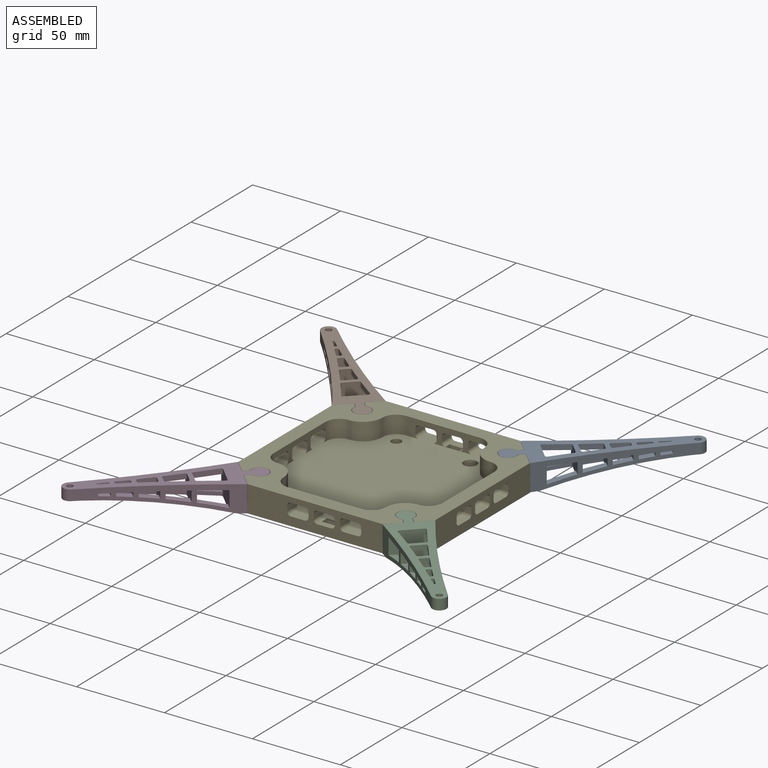
[diagram: assembled view]
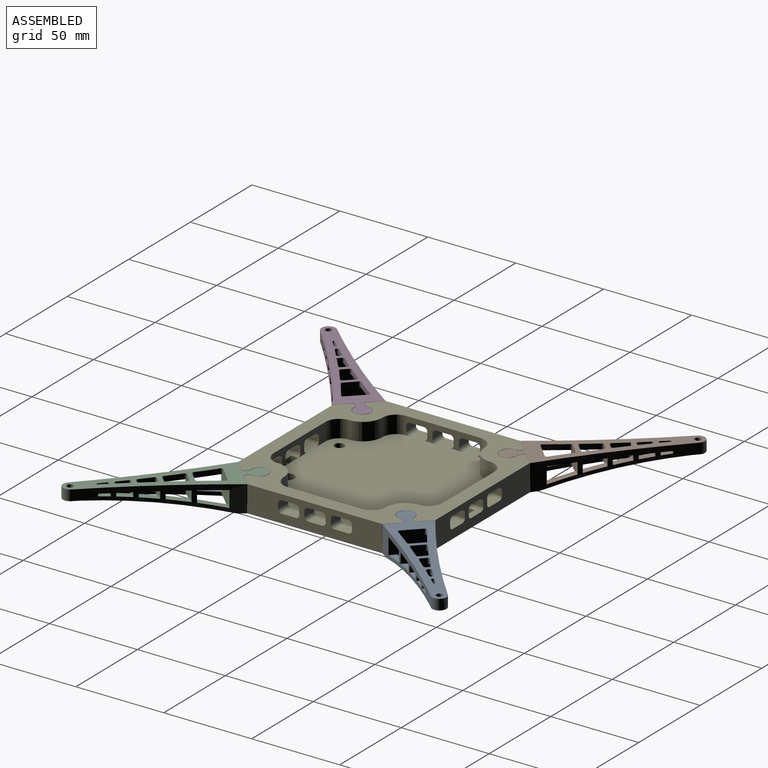
[diagram: assembled view, second angle]
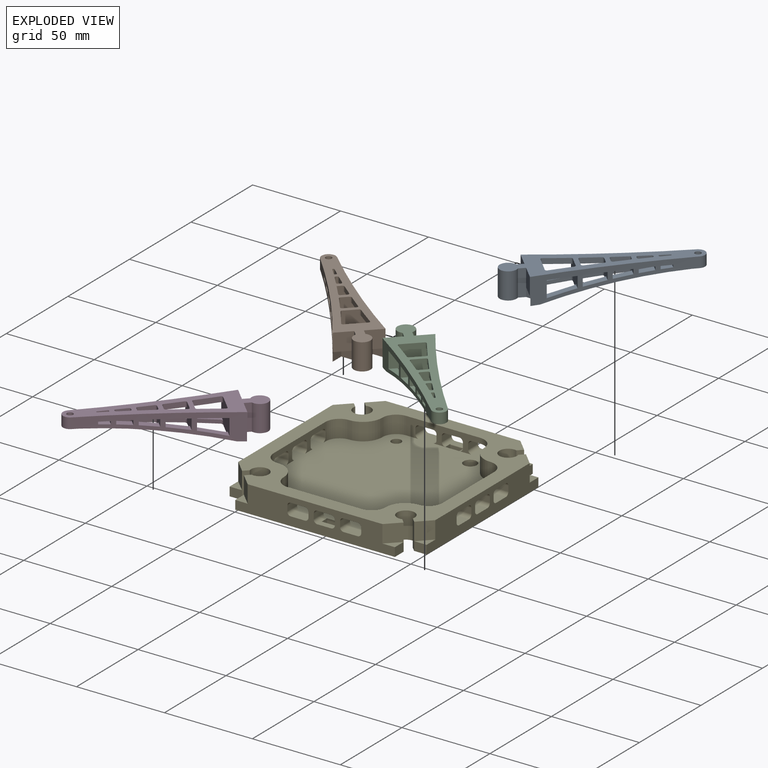
[diagram: exploded view]
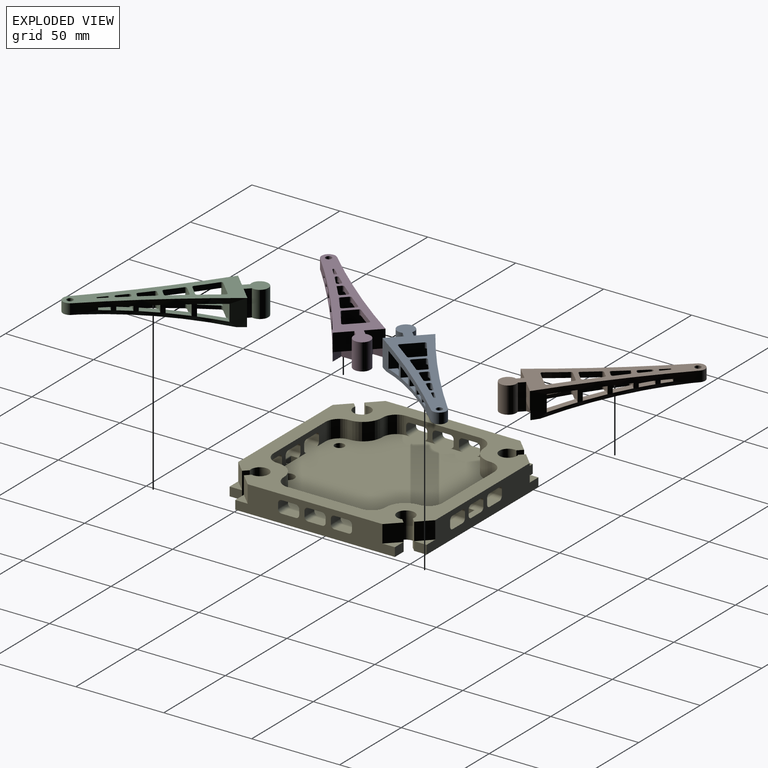
[diagram: exploded view, second angle]
ASSEMBLY  parts=5 mates=4
PART A: 112 faces, bbox 74x74x15 mm
  f0: cylinder r=544mm len=10.55mm, axis (0,0,-1), area 26.7mm2, adj f51,f68,f94,f95
  f1: cylinder r=544mm len=7.9mm, axis (0,0,-1), area 20.3mm2, adj f51,f66,f92,f93
  f2: cylinder r=544mm len=6.18mm, axis (0,0,-1), area 16.1mm2, adj f51,f72,f90,f91
  f3: cylinder r=544mm len=4.55mm, axis (0,0,-1), area 12.1mm2, adj f51,f70,f88,f89
  f4: cylinder r=544mm len=3.73mm, axis (0,0,-1), area 10mm2, adj f51,f64,f108,f109
  f5: cylinder r=540mm len=63.68mm, axis (0,0,-1), area 542.3mm2, adj f6,f16,f18,f19,f21,f22,f24,f25
  f6: cylinder r=4mm len=6.75mm, axis (0,0,-1), area 74.1mm2, adj f5,f7,f46,f52
  f7: cylinder r=540mm len=63.68mm, axis (0,0,-1), area 542.3mm2, adj f6,f14,f16,f18,f19,f21,f22,f24
  f8: cylinder r=544mm len=7.9mm, axis (0,0,-1), area 20.3mm2, adj f51,f62,f98,f99
  f9: cylinder r=544mm len=6.18mm, axis (0,0,-1), area 16.1mm2, adj f51,f60,f100,f101
  f10: cylinder r=544mm len=4.55mm, axis (0,0,-1), area 12.1mm2, adj f51,f58,f102,f103
  f11: cylinder r=544mm len=3.73mm, axis (0,0,-1), area 10mm2, adj f51,f56,f110,f111
  f12: cylinder r=1.75mm len=6mm, axis (0,0,-1), area 66mm2, adj f46,f52
  f13: cylinder r=544mm len=10.55mm, axis (0,0,-1), area 26.7mm2, adj f51,f54,f96,f97
  f14: plane 6.63x2.73mm, normal (0,0,1), area 9mm2, adj f7,f35,f51
  f15: plane 19.1x19.1mm, normal (0,0,1), area 135.2mm2, adj f31,f32,f33,f36,f37,f38,f43,f51
  f16: plane 12.46x12.46mm, normal (0.71,0.71,0), area 151.6mm2, adj f5,f7,f46,f51,f53,f54,f67,f68
  f17: cylinder r=544mm len=10.55mm, axis (0,0,-1), area 39.4mm2, adj f46,f67,f73,f74
  f18: plane 15.67x15.67mm, normal (-0.71,-0.71,0), area 263.8mm2, adj f5,f7,f46,f51,f53,f54,f67,f68
  f19: plane 9.92x9.92mm, normal (0.71,0.71,0), area 79.9mm2, adj f5,f7,f46,f51,f61,f62,f65,f66
  f20: cylinder r=544mm len=7.9mm, axis (0,0,-1), area 30.2mm2, adj f46,f65,f75,f76
  f21: plane 11.98x11.98mm, normal (-0.71,-0.71,0), area 134.2mm2, adj f5,f7,f46,f51,f61,f62,f65,f66
  f22: plane 8.19x8.19mm, normal (0.71,0.71,0), area 43.3mm2, adj f5,f7,f23,f46,f51,f59,f60,f71
  f23: cylinder r=544mm len=6.88mm, axis (0,0,-1), area 26.8mm2, adj f22,f46,f71,f77
  f24: plane 9.54x9.54mm, normal (-0.71,-0.71,0), area 68.5mm2, adj f5,f7,f46,f51,f59,f60,f71,f72
  f25: plane 7.06x7.06mm, normal (0.71,0.71,0), area 19mm2, adj f5,f7,f46,f51,f57,f58,f69,f70
  f26: cylinder r=544mm len=4.55mm, axis (0,0,-1), area 18mm2, adj f46,f69,f78,f79
  f27: plane 7.9x7.9mm, normal (-0.71,-0.71,0), area 32.9mm2, adj f5,f7,f46,f51,f57,f58,f69,f70
  f28: plane 6.35x6.35mm, normal (0.71,0.71,0), area 12.1mm2, adj f5,f7,f46,f51,f55,f56,f63,f64
  f29: cylinder r=544mm len=3.73mm, axis (0,0,-1), area 15mm2, adj f46,f63,f104,f105
  f30: plane 6.83x6.83mm, normal (-0.71,-0.71,0), area 19.2mm2, adj f5,f7,f46,f51,f55,f56,f63,f64
  f31: plane 15x2.75mm, normal (-0.71,0.71,0), area 58.3mm2, adj f15,f32,f43,f46
  f32: plane 15x7.21mm, normal (0.71,0.71,0), area 102mm2, adj f15,f31,f33,f46,f47,f48
  f33: plane 7.33x5mm, normal (0,1,0), area 36.6mm2, adj f15,f32,f34,f48,f51
  f34: plane 7.03x5mm, normal (1,0,0), area 35.1mm2, adj f5,f33,f45,f48,f51
  f35: plane 7.03x5mm, normal (0,1,0), area 35.1mm2, adj f7,f14,f36,f50,f51
  f36: plane 7.33x5mm, normal (1,0,0), area 36.6mm2, adj f15,f35,f37,f50,f51
  f37: plane 15x7.21mm, normal (0.71,0.71,0), area 102mm2, adj f15,f36,f38,f46,f49,f50
  f38: plane 15x2.75mm, normal (0.71,-0.71,0), area 58.3mm2, adj f15,f37,f43,f46
  f39: cylinder r=544mm len=7.9mm, axis (0,0,-1), area 30.2mm2, adj f46,f61,f80,f81
  f40: cylinder r=544mm len=6.18mm, axis (0,0,-1), area 24.1mm2, adj f46,f59,f82,f83
  f41: cylinder r=544mm len=4.55mm, axis (0,0,-1), area 18mm2, adj f46,f57,f84,f85
  f42: cylinder r=544mm len=3.73mm, axis (0,0,-1), area 15mm2, adj f46,f55,f106,f107
  f43: cylinder r=4.8mm len=15mm, axis (0,0,-1), area 380.4mm2, adj f15,f31,f38,f46
  f44: cylinder r=544mm len=10.55mm, axis (0,0,-1), area 39.4mm2, adj f46,f53,f86,f87
  f45: plane 6.63x2.73mm, normal (0,0,1), area 9mm2, adj f5,f34,f51
  f46: plane 72.3x72.3mm, normal (0,0,-1), area 947.7mm2, adj f5,f6,f7,f12,f16,f17,f18,f19
  f47: plane 10x0.17mm, normal (-0.78,0.63,0), area 2.2mm2, adj f5,f32,f46,f48
  f48: plane 7.33x7.19mm, normal (0,0,1), area 26.8mm2, adj f32,f33,f34,f47
  f49: plane 10x0.17mm, normal (0.63,-0.78,0), area 2.2mm2, adj f7,f37,f46,f50
  f50: plane 7.33x7.19mm, normal (0,0,1), area 26.8mm2, adj f35,f36,f37,f49
  f51: cylinder r=387.19mm len=68.23mm, axis (-0.71,0.71,0), area 703.3mm2, adj f0,f1,f2,f3,f4,f5,f7,f8
  f52: plane 9.44x9.44mm, normal (0,0,1), area 44.6mm2, adj f5,f6,f7,f12,f51
  f53: plane 15.69x12.7mm, normal (0,0,1), area 61.1mm2, adj f7,f16,f18,f44,f86,f87
  f54: cylinder r=389.19mm len=15.69mm, axis (-0.71,0.71,0), area 62.3mm2, adj f7,f13,f16,f18,f96,f97
  f55: plane 7.65x7.21mm, normal (0,0,1), area 24.1mm2, adj f7,f28,f30,f42,f106,f107
  f56: cylinder r=389.19mm len=7.65mm, axis (-0.71,0.71,0), area 24.2mm2, adj f7,f11,f28,f30,f110,f111
  f57: plane 9.57x8.84mm, normal (0,0,1), area 32.5mm2, adj f7,f25,f27,f41,f84,f85
  f58: cylinder r=389.19mm len=9.57mm, axis (-0.71,0.71,0), area 32.7mm2, adj f7,f10,f25,f27,f102,f103
  f59: plane 11.23x10.02mm, normal (0,0,1), area 40.6mm2, adj f7,f22,f24,f40,f82,f83
  f60: cylinder r=389.19mm len=11.23mm, axis (-0.71,0.71,0), area 40.8mm2, adj f7,f9,f22,f24,f100,f101
  f61: plane 12.99x11.12mm, normal (0,0,1), area 48.8mm2, adj f7,f19,f21,f39,f80,f81
  f62: cylinder r=389.19mm len=12.99mm, axis (-0.71,0.71,0), area 49.3mm2, adj f7,f8,f19,f21,f98,f99
  f63: plane 7.65x7.21mm, normal (0,0,1), area 24.1mm2, adj f5,f28,f29,f30,f104,f105
  f64: cylinder r=389.19mm len=7.65mm, axis (-0.71,0.71,0), area 24.2mm2, adj f4,f5,f28,f30,f108,f109
  f65: plane 12.99x11.12mm, normal (0,0,1), area 48.8mm2, adj f5,f19,f20,f21,f75,f76
  f66: cylinder r=389.19mm len=12.99mm, axis (-0.71,0.71,0), area 49.3mm2, adj f1,f5,f19,f21,f92,f93
  f67: plane 15.69x12.7mm, normal (0,0,1), area 61.1mm2, adj f5,f16,f17,f18,f73,f74
  f68: cylinder r=389.19mm len=15.69mm, axis (-0.71,0.71,0), area 62.3mm2, adj f0,f5,f16,f18,f94,f95
  f69: plane 9.57x8.84mm, normal (0,0,1), area 32.5mm2, adj f5,f25,f26,f27,f78,f79
  f70: cylinder r=389.19mm len=9.57mm, axis (-0.71,0.71,0), area 32.7mm2, adj f3,f5,f25,f27,f88,f89
  f71: plane 10.59x10.02mm, normal (0,0,1), area 40.5mm2, adj f5,f22,f23,f24,f77
  f72: cylinder r=389.19mm len=11.23mm, axis (-0.71,0.71,0), area 40.8mm2, adj f2,f5,f22,f24,f90,f91
  f73: cylinder r=1mm len=3mm, axis (0,0,-1), area 4.3mm2, adj f16,f17,f46,f67
  f74: cylinder r=1mm len=3mm, axis (0,0,-1), area 5.2mm2, adj f17,f18,f46,f67
  f75: cylinder r=1mm len=3mm, axis (0,0,-1), area 4.4mm2, adj f19,f20,f46,f65
  f76: cylinder r=1mm len=3mm, axis (0,0,-1), area 5.1mm2, adj f20,f21,f46,f65
  f77: cylinder r=1mm len=3mm, axis (0,0,-1), area 5mm2, adj f23,f24,f46,f71
  f78: cylinder r=1mm len=3mm, axis (0,0,-1), area 4.5mm2, adj f25,f26,f46,f69
  f79: cylinder r=1mm len=3mm, axis (0,0,-1), area 4.9mm2, adj f26,f27,f46,f69
  f80: cylinder r=1mm len=3mm, axis (0,0,-1), area 5.1mm2, adj f21,f39,f46,f61
  f81: cylinder r=1mm len=3mm, axis (0,0,-1), area 4.4mm2, adj f19,f39,f46,f61
  f82: cylinder r=1mm len=3mm, axis (0,0,-1), area 5mm2, adj f24,f40,f46,f59
  f83: cylinder r=1mm len=3mm, axis (0,0,-1), area 4.5mm2, adj f22,f40,f46,f59
  f84: cylinder r=1mm len=3mm, axis (0,0,-1), area 4.9mm2, adj f27,f41,f46,f57
  f85: cylinder r=1mm len=3mm, axis (0,0,-1), area 4.5mm2, adj f25,f41,f46,f57
  f86: cylinder r=1mm len=3mm, axis (0,0,-1), area 5.2mm2, adj f18,f44,f46,f53
  f87: cylinder r=1mm len=3mm, axis (0,0,-1), area 4.3mm2, adj f16,f44,f46,f53
  f88: cylinder r=1mm len=2.07mm, axis (0,0,-1), area 3mm2, adj f3,f25,f51,f70
  f89: cylinder r=1mm len=2.11mm, axis (0,0,-1), area 3.3mm2, adj f3,f27,f51,f70
  f90: cylinder r=1mm len=2.1mm, axis (0,0,-1), area 3mm2, adj f2,f22,f51,f72
  f91: cylinder r=1mm len=2.15mm, axis (0,0,-1), area 3.4mm2, adj f2,f24,f51,f72
  f92: cylinder r=1mm len=2.14mm, axis (0,0,-1), area 2.9mm2, adj f1,f19,f51,f66
  f93: cylinder r=1mm len=2.21mm, axis (0,0,-1), area 3.4mm2, adj f1,f21,f51,f66
  f94: cylinder r=1mm len=2.18mm, axis (0,0,-1), area 2.9mm2, adj f0,f16,f51,f68
  f95: cylinder r=1mm len=2.29mm, axis (0,0,-1), area 3.5mm2, adj f0,f18,f51,f68
  f96: cylinder r=1mm len=2.29mm, axis (0,0,-1), area 3.5mm2, adj f13,f18,f51,f54
  f97: cylinder r=1mm len=2.18mm, axis (0,0,-1), area 2.9mm2, adj f13,f16,f51,f54
  f98: cylinder r=1mm len=2.21mm, axis (0,0,-1), area 3.4mm2, adj f8,f21,f51,f62
  f99: cylinder r=1mm len=2.14mm, axis (0,0,-1), area 2.9mm2, adj f8,f19,f51,f62
  f100: cylinder r=1mm len=2.15mm, axis (0,0,-1), area 3.4mm2, adj f9,f24,f51,f60
  f101: cylinder r=1mm len=2.1mm, axis (0,0,-1), area 3mm2, adj f9,f22,f51,f60
  f102: cylinder r=1mm len=2.11mm, axis (0,0,-1), area 3.3mm2, adj f10,f27,f51,f58
  f103: cylinder r=1mm len=2.07mm, axis (0,0,-1), area 3mm2, adj f10,f25,f51,f58
  f104: cylinder r=0.5mm len=3mm, axis (0,0,-1), area 2.3mm2, adj f28,f29,f46,f63
  f105: cylinder r=0.5mm len=3mm, axis (0,0,-1), area 2.4mm2, adj f29,f30,f46,f63
  f106: cylinder r=0.5mm len=3mm, axis (0,0,-1), area 2.4mm2, adj f30,f42,f46,f55
  f107: cylinder r=0.5mm len=3mm, axis (0,0,-1), area 2.3mm2, adj f28,f42,f46,f55
  f108: cylinder r=0.5mm len=2.03mm, axis (0,0,-1), area 1.5mm2, adj f4,f28,f51,f64
  f109: cylinder r=0.5mm len=2.04mm, axis (0,0,-1), area 1.6mm2, adj f4,f30,f51,f64
  f110: cylinder r=0.5mm len=2.04mm, axis (0,0,-1), area 1.6mm2, adj f11,f30,f51,f56
  f111: cylinder r=0.5mm len=2.03mm, axis (0,0,-1), area 1.5mm2, adj f11,f28,f51,f56
PART B: same geometry as A
PART C: same geometry as A
PART D: same geometry as A
PART E: 165 faces, bbox 112x112x15 mm
  f0: plane 112x112mm, normal (0,0,1), area 8271.6mm2, adj f3,f4,f5,f6,f7,f8,f9,f10
  f1: plane 8x3.5mm, normal (0,0,1), area 28mm2, adj f10,f102,f103,f163
  f2: plane 112x112mm, normal (0,0,-1), area 11532.6mm2, adj f3,f4,f9,f10,f15,f16,f17,f18
  f3: plane 90.79x15mm, normal (1,0,0), area 978.7mm2, adj f0,f2,f19,f22,f24,f33,f34,f50
  f4: plane 90.79x15mm, normal (-1,0,0), area 978.7mm2, adj f0,f2,f19,f26,f43,f44,f47,f54
  f5: plane 2x2mm, normal (1,0,0), area 0.9mm2, adj f0,f59,f152
  f6: plane 2x2mm, normal (1,0,0), area 0.9mm2, adj f0,f61,f137
  f7: plane 2x2mm, normal (-1,0,0), area 0.9mm2, adj f0,f67,f116
  f8: plane 2x2mm, normal (-1,0,0), area 0.9mm2, adj f0,f65,f126
  f9: plane 90.79x15mm, normal (0,-1,0), area 979.2mm2, adj f0,f2,f19,f20,f21,f28,f29,f48
  f10: plane 90.79x15mm, normal (0,1,0), area 979.2mm2, adj f0,f1,f2,f19,f23,f25,f38,f39
  f11: cylinder r=8mm len=10mm, axis (0,0,-1), area 87.7mm2, adj f0,f12,f19,f56,f92,f93,f94,f96
  f12: plane 42x10mm, normal (0,-1,0), area 213.9mm2, adj f0,f11,f19,f57,f90,f91,f92,f95
  f13: plane 42x10mm, normal (0,1,0), area 213.9mm2, adj f0,f14,f19,f63,f72,f73,f74,f75
  f14: cylinder r=8mm len=10mm, axis (0,0,-1), area 87.7mm2, adj f0,f13,f19,f64,f69,f70,f71,f72
  f15: cylinder r=2.75mm len=5.5mm, axis (0,0,-1), area 86.4mm2, adj f0,f2
  f16: cylinder r=3.75mm len=7.5mm, axis (0,0,-1), area 117.8mm2, adj f0,f2
  f17: cylinder r=2.75mm len=5.5mm, axis (0,0,-1), area 86.4mm2, adj f0,f2
  f18: cylinder r=3.75mm len=7.5mm, axis (0,0,-1), area 117.8mm2, adj f0,f2
  f19: plane 112x112mm, normal (0,0,1), area 3774.5mm2, adj f3,f4,f9,f10,f11,f12,f13,f14
  f20: plane 7.07x7.07mm, normal (0,0,1), area 25mm2, adj f9,f28,f48
  f21: plane 7.07x7.07mm, normal (0,0,1), area 25mm2, adj f9,f29,f49
  f22: plane 7.07x7.07mm, normal (0,0,1), area 25mm2, adj f3,f34,f51
  f23: plane 7.07x7.07mm, normal (0,0,1), area 25mm2, adj f10,f38,f52
  f24: plane 7.07x7.07mm, normal (0,0,1), area 25mm2, adj f3,f33,f50
  f25: plane 7.07x7.07mm, normal (0,0,1), area 25mm2, adj f10,f39,f53
  f26: plane 7.07x7.07mm, normal (0,0,1), area 25mm2, adj f4,f44,f55
  f27: plane 15x2.6mm, normal (-0.71,0.71,0), area 55mm2, adj f2,f19,f28,f46,f48
  f28: plane 7.07x5mm, normal (-1,0,0), area 35.4mm2, adj f2,f9,f20,f27
  f29: plane 7.07x5mm, normal (1,0,0), area 35.4mm2, adj f2,f9,f21,f30
  f30: plane 15x2.6mm, normal (0.71,0.71,0), area 55mm2, adj f2,f19,f29,f31,f49
  f31: cylinder r=5mm len=15mm, axis (0,0,-1), area 392.7mm2, adj f2,f19,f30,f32
  f32: plane 15x2.6mm, normal (-0.71,-0.71,0), area 55mm2, adj f2,f19,f31,f33,f50
  f33: plane 7.07x5mm, normal (0,-1,0), area 35.4mm2, adj f2,f3,f24,f32
  f34: plane 7.07x5mm, normal (0,1,0), area 35.4mm2, adj f2,f3,f22,f35
  f35: plane 15x2.6mm, normal (-0.71,0.71,0), area 55mm2, adj f2,f19,f34,f36,f51
  f36: cylinder r=5mm len=15mm, axis (0,0,-1), area 392.7mm2, adj f2,f19,f35,f37
  f37: plane 15x2.6mm, normal (0.71,-0.71,0), area 55mm2, adj f2,f19,f36,f38,f52
  f38: plane 7.07x5mm, normal (1,0,0), area 35.4mm2, adj f2,f10,f23,f37
  f39: plane 7.07x5mm, normal (-1,0,0), area 35.4mm2, adj f2,f10,f25,f40
  f40: plane 15x2.6mm, normal (-0.71,-0.71,0), area 55mm2, adj f2,f19,f39,f41,f53
  f41: cylinder r=5mm len=15mm, axis (0,0,-1), area 392.7mm2, adj f2,f19,f40,f42
  f42: plane 15x2.6mm, normal (0.71,0.71,0), area 55mm2, adj f2,f19,f41,f43,f54
  f43: plane 7.07x5mm, normal (0,1,0), area 35.4mm2, adj f2,f4,f42,f47
  f44: plane 7.07x5mm, normal (0,-1,0), area 35.4mm2, adj f2,f4,f26,f45
  f45: plane 15x2.6mm, normal (0.71,-0.71,0), area 55mm2, adj f2,f19,f44,f46,f55
  f46: cylinder r=5mm len=15mm, axis (0,0,-1), area 392.7mm2, adj f2,f19,f27,f45
  f47: plane 7.07x7.07mm, normal (0,0,1), area 25mm2, adj f4,f43,f54
  f48: plane 10x7.07mm, normal (-0.71,-0.71,0), area 100mm2, adj f9,f19,f20,f27
  f49: plane 10x7.07mm, normal (0.71,-0.71,0), area 100mm2, adj f9,f19,f21,f30
  f50: plane 10x7.07mm, normal (0.71,-0.71,0), area 100mm2, adj f3,f19,f24,f32
  f51: plane 10x7.07mm, normal (0.71,0.71,0), area 100mm2, adj f3,f19,f22,f35
  f52: plane 10x7.07mm, normal (0.71,0.71,0), area 100mm2, adj f10,f19,f23,f37
  f53: plane 10x7.07mm, normal (-0.71,0.71,0), area 100mm2, adj f10,f19,f25,f40
  f54: plane 10x7.07mm, normal (-0.71,0.71,0), area 100mm2, adj f4,f19,f42,f47
  f55: plane 10x7.07mm, normal (-0.71,-0.71,0), area 100mm2, adj f4,f19,f26,f45
  f56: cylinder r=11mm len=11mm, axis (0,0,-1), area 172.8mm2, adj f0,f11,f19,f67
  f57: cylinder r=8mm len=10mm, axis (0,0,-1), area 125.7mm2, adj f0,f12,f19,f58
  f58: cylinder r=11mm len=11mm, axis (0,0,-1), area 172.8mm2, adj f0,f19,f57,f59
  f59: cylinder r=8mm len=10mm, axis (0,0,-1), area 125.7mm2, adj f0,f5,f19,f58,f60,f149
  f60: plane 42x10mm, normal (1,0,0), area 176.6mm2, adj f0,f19,f59,f61,f132,f133,f134,f135
  f61: cylinder r=8mm len=10mm, axis (0,0,-1), area 125.7mm2, adj f0,f6,f19,f60,f62,f136
  f62: cylinder r=11mm len=11mm, axis (0,0,-1), area 172.8mm2, adj f0,f19,f61,f63
  f63: cylinder r=8mm len=10mm, axis (0,0,-1), area 125.7mm2, adj f0,f13,f19,f62
  f64: cylinder r=11mm len=11mm, axis (0,0,-1), area 172.8mm2, adj f0,f14,f19,f65
  f65: cylinder r=8mm len=10mm, axis (0,0,-1), area 125.7mm2, adj f0,f8,f19,f64,f66,f127
  f66: plane 42x10mm, normal (-1,0,0), area 176.6mm2, adj f0,f19,f65,f67,f111,f112,f113,f115
  f67: cylinder r=8mm len=10mm, axis (0,0,-1), area 125.7mm2, adj f0,f7,f19,f56,f66,f114
  f68: plane 8x3.5mm, normal (0,0,1), area 28mm2, adj f9,f76,f81,f164
  f69: cylinder r=2mm len=9.97mm, axis (0,-1,0), area 29.7mm2, adj f9,f14,f70,f72
  f70: plane 9.97x3mm, normal (-1,0,0), area 29.9mm2, adj f9,f14,f69,f71
  f71: cylinder r=2mm len=9.97mm, axis (0,-1,0), area 29.7mm2, adj f0,f9,f14,f70
  f72: plane 8.69x8mm, normal (0,0,-1), area 64.7mm2, adj f9,f13,f14,f69,f75
  f73: cylinder r=2mm len=8mm, axis (0,-1,0), area 25.1mm2, adj f0,f9,f13,f74
  f74: plane 8x3mm, normal (1,0,0), area 24mm2, adj f9,f13,f73,f75
  f75: cylinder r=2mm len=8mm, axis (0,-1,0), area 25.1mm2, adj f9,f13,f72,f74
  f76: cylinder r=2mm len=8mm, axis (0,-1,0), area 25.1mm2, adj f9,f13,f68,f77,f158
  f77: plane 8x2.96mm, normal (1,0,0), area 23.7mm2, adj f9,f13,f76,f78
  f78: cylinder r=2mm len=8mm, axis (0,-1,0), area 25.1mm2, adj f9,f13,f77,f82
  f79: cylinder r=2mm len=8mm, axis (0,-1,0), area 25.1mm2, adj f9,f13,f80,f82
  f80: plane 8x2.96mm, normal (-1,0,0), area 23.7mm2, adj f9,f13,f79,f81
  f81: cylinder r=2mm len=8mm, axis (0,-1,0), area 25.1mm2, adj f9,f13,f68,f80,f160
  f82: plane 8x8mm, normal (0,0,-1), area 64mm2, adj f9,f13,f78,f79
  f83: cylinder r=2mm len=8mm, axis (0,-1,0), area 25.1mm2, adj f0,f9,f13,f89
  f84: cylinder r=2mm len=8mm, axis (0,-1,0), area 25.1mm2, adj f0,f9,f13,f85
  f85: plane 8x3mm, normal (1,0,0), area 24mm2, adj f9,f13,f84,f86
  f86: cylinder r=2mm len=8mm, axis (0,-1,0), area 25.1mm2, adj f9,f13,f85,f87
  f87: plane 8x8mm, normal (0,0,-1), area 64mm2, adj f9,f13,f86,f88
  f88: cylinder r=2mm len=8mm, axis (0,-1,0), area 25.1mm2, adj f9,f13,f87,f89
  f89: plane 8x3mm, normal (-1,0,0), area 24mm2, adj f9,f13,f83,f88
  f90: cylinder r=2mm len=8mm, axis (0,-1,0), area 25.1mm2, adj f10,f12,f91,f92
  f91: plane 8x3mm, normal (1,0,0), area 24mm2, adj f10,f12,f90,f95
  f92: plane 8.69x8mm, normal (0,0,-1), area 64.7mm2, adj f10,f11,f12,f90,f94
  f93: plane 9.97x3mm, normal (-1,0,0), area 29.9mm2, adj f10,f11,f94,f96
  f94: cylinder r=2mm len=9.97mm, axis (0,-1,0), area 29.7mm2, adj f10,f11,f92,f93
  f95: cylinder r=2mm len=8mm, axis (0,-1,0), area 25.1mm2, adj f0,f10,f12,f91
  f96: cylinder r=2mm len=9.97mm, axis (0,-1,0), area 29.7mm2, adj f0,f10,f11,f93
  f97: plane 8x8mm, normal (0,0,-1), area 64mm2, adj f10,f12,f98,f101
  f98: cylinder r=2mm len=8mm, axis (0,-1,0), area 25.1mm2, adj f10,f12,f97,f99
  f99: plane 8x2.96mm, normal (1,0,0), area 23.7mm2, adj f10,f12,f98,f102
  f100: plane 8x2.96mm, normal (-1,0,0), area 23.7mm2, adj f10,f12,f101,f103
  f101: cylinder r=2mm len=8mm, axis (0,-1,0), area 25.1mm2, adj f10,f12,f97,f100
  f102: cylinder r=2mm len=8mm, axis (0,-1,0), area 25.1mm2, adj f1,f10,f12,f99,f153
  f103: cylinder r=2mm len=8mm, axis (0,-1,0), area 25.1mm2, adj f1,f10,f12,f100,f155
  f104: plane 8x3mm, normal (-1,0,0), area 24mm2, adj f10,f12,f105,f110
  f105: cylinder r=2mm len=8mm, axis (0,-1,0), area 25.1mm2, adj f10,f12,f104,f106
  f106: plane 8x8mm, normal (0,0,-1), area 64mm2, adj f10,f12,f105,f107
  f107: cylinder r=2mm len=8mm, axis (0,-1,0), area 25.1mm2, adj f10,f12,f106,f108
  f108: plane 8x3mm, normal (1,0,0), area 24mm2, adj f10,f12,f107,f109
  f109: cylinder r=2mm len=8mm, axis (0,-1,0), area 25.1mm2, adj f0,f10,f12,f108
  f110: cylinder r=2mm len=8mm, axis (0,-1,0), area 25.1mm2, adj f0,f10,f12,f104
  f111: cylinder r=2mm len=8mm, axis (1,0,0), area 25.1mm2, adj f0,f3,f66,f112
  f112: plane 8x3mm, normal (0,1,0), area 24mm2, adj f3,f66,f111,f113
  f113: cylinder r=2mm len=8mm, axis (1,0,0), area 25.1mm2, adj f3,f66,f112,f117
  f114: plane 8x3mm, normal (0,-1,0), area 24mm2, adj f3,f67,f115,f116
  f115: cylinder r=2mm len=8mm, axis (1,0,0), area 25.1mm2, adj f3,f66,f114,f117
  f116: cylinder r=2mm len=8mm, axis (1,0,0), area 25.1mm2, adj f0,f3,f7,f114
  f117: plane 8x8mm, normal (0,0,-1), area 64mm2, adj f3,f66,f113,f115
  f118: cylinder r=2mm len=8mm, axis (1,0,0), area 25.1mm2, adj f0,f3,f66,f119
  f119: plane 8x3mm, normal (0,1,0), area 24mm2, adj f3,f66,f118,f120
  f120: cylinder r=2mm len=8mm, axis (1,0,0), area 25.1mm2, adj f3,f66,f119,f124
  f121: cylinder r=2mm len=8mm, axis (1,0,0), area 25.1mm2, adj f3,f66,f122,f124
  f122: plane 8x3mm, normal (0,-1,0), area 24mm2, adj f3,f66,f121,f123
  f123: cylinder r=2mm len=8mm, axis (1,0,0), area 25.1mm2, adj f0,f3,f66,f122
  f124: plane 8x8mm, normal (0,0,-1), area 64mm2, adj f3,f66,f120,f121
  f125: cylinder r=2mm len=8mm, axis (1,0,0), area 25.1mm2, adj f0,f3,f66,f131
  f126: cylinder r=2mm len=8mm, axis (1,0,0), area 25.1mm2, adj f0,f3,f8,f127
  f127: plane 8x3mm, normal (0,1,0), area 24mm2, adj f3,f65,f126,f128
  f128: cylinder r=2mm len=8mm, axis (1,0,0), area 25.1mm2, adj f3,f66,f127,f129
  f129: plane 8x8mm, normal (0,0,-1), area 64mm2, adj f3,f66,f128,f130
  f130: cylinder r=2mm len=8mm, axis (1,0,0), area 25.1mm2, adj f3,f66,f129,f131
  f131: plane 8x3mm, normal (0,-1,0), area 24mm2, adj f3,f66,f125,f130
  f132: plane 8x3mm, normal (0,-1,0), area 24mm2, adj f4,f60,f133,f138
  f133: cylinder r=2mm len=8mm, axis (1,0,0), area 25.1mm2, adj f4,f60,f132,f134
  f134: plane 8x8mm, normal (0,0,-1), area 64mm2, adj f4,f60,f133,f135
  f135: cylinder r=2mm len=8mm, axis (1,0,0), area 25.1mm2, adj f4,f60,f134,f136
  f136: plane 8x3mm, normal (0,1,0), area 24mm2, adj f4,f61,f135,f137
  f137: cylinder r=2mm len=8mm, axis (1,0,0), area 25.1mm2, adj f0,f4,f6,f136
  f138: cylinder r=2mm len=8mm, axis (1,0,0), area 25.1mm2, adj f0,f4,f60,f132
  f139: plane 8x8mm, normal (0,0,-1), area 64mm2, adj f4,f60,f140,f143
  f140: cylinder r=2mm len=8mm, axis (1,0,0), area 25.1mm2, adj f4,f60,f139,f141
  f141: plane 8x3mm, normal (0,1,0), area 24mm2, adj f4,f60,f140,f144
  f142: plane 8x3mm, normal (0,-1,0), area 24mm2, adj f4,f60,f143,f145
  f143: cylinder r=2mm len=8mm, axis (1,0,0), area 25.1mm2, adj f4,f60,f139,f142
  f144: cylinder r=2mm len=8mm, axis (1,0,0), area 25.1mm2, adj f0,f4,f60,f141
  f145: cylinder r=2mm len=8mm, axis (1,0,0), area 25.1mm2, adj f0,f4,f60,f142
  f146: plane 8x8mm, normal (0,0,-1), area 64mm2, adj f4,f60,f147,f150
  f147: cylinder r=2mm len=8mm, axis (1,0,0), area 25.1mm2, adj f4,f60,f146,f148
  f148: plane 8x3mm, normal (0,1,0), area 24mm2, adj f4,f60,f147,f151
  f149: plane 8x3mm, normal (0,-1,0), area 24mm2, adj f4,f59,f150,f152
  f150: cylinder r=2mm len=8mm, axis (1,0,0), area 25.1mm2, adj f4,f60,f146,f149
  f151: cylinder r=2mm len=8mm, axis (1,0,0), area 25.1mm2, adj f0,f4,f60,f148
  f152: cylinder r=2mm len=8mm, axis (1,0,0), area 25.1mm2, adj f0,f4,f5,f149
  f153: plane 5x4.5mm, normal (1,0,0), area 20.1mm2, adj f2,f102,f154,f156,f162,f163
  f154: plane 8x5mm, normal (0,1,0), area 40mm2, adj f0,f2,f153,f155
  f155: plane 5x4.5mm, normal (-1,0,0), area 20.1mm2, adj f2,f103,f154,f156,f162,f163
  f156: plane 8x4mm, normal (0,-1,0), area 32mm2, adj f153,f155,f162,f163
  f157: plane 8x5mm, normal (0,-1,0), area 40mm2, adj f0,f2,f158,f160
  f158: plane 5x4.5mm, normal (1,0,0), area 20.1mm2, adj f2,f76,f157,f159,f161,f164
  f159: plane 8x4mm, normal (0,1,0), area 32mm2, adj f158,f160,f161,f164
  f160: plane 5x4.5mm, normal (-1,0,0), area 20.1mm2, adj f2,f81,f157,f159,f161,f164
  f161: cylinder r=0.5mm len=8mm, axis (1,0,0), area 6.3mm2, adj f2,f158,f159,f160
  f162: cylinder r=0.5mm len=8mm, axis (-1,0,0), area 6.3mm2, adj f2,f153,f155,f156
  f163: cylinder r=0.5mm len=8mm, axis (1,0,0), area 6.3mm2, adj f1,f153,f155,f156
  f164: cylinder r=0.5mm len=8mm, axis (-1,0,0), area 6.3mm2, adj f68,f158,f159,f160
PLACE A rot(axis=(0.71,-0.71,0),180deg) t=(-0.23,0.03,7.74)mm
PLACE B rot(axis=(1,0,0),180deg) t=(-0.23,0.03,7.74)mm
PLACE C rot(axis=(0,1,0),180deg) t=(-0.23,0.03,7.74)mm
PLACE D rot(axis=(0.71,0.71,0),180deg) t=(-0.23,0.03,7.74)mm
PLACE E t=(-0.23,0.03,-7.26)mm fixed
MATE slider D.f43 <-> E.f46  axis (0,0,1) through (-41.74,-41.48,7.74)mm
MATE slider C.f43 <-> E.f31  axis (0,0,1) through (41.27,-41.48,7.74)mm
MATE slider B.f43 <-> E.f41  axis (0,0,1) through (-41.74,41.53,7.74)mm
MATE slider A.f43 <-> E.f36  axis (0,0,1) through (41.27,41.53,7.74)mm
